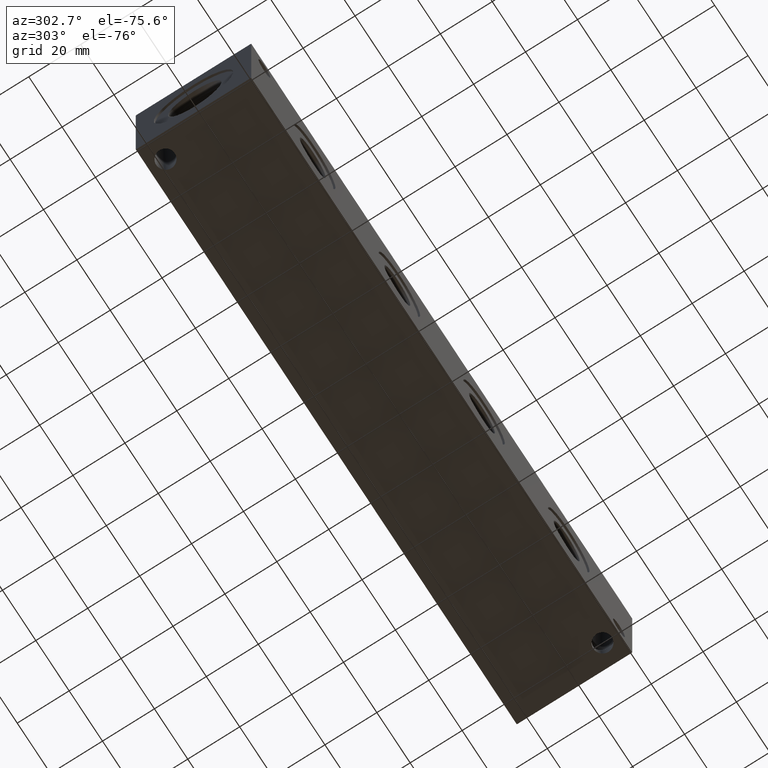
[diagram: clean part render]
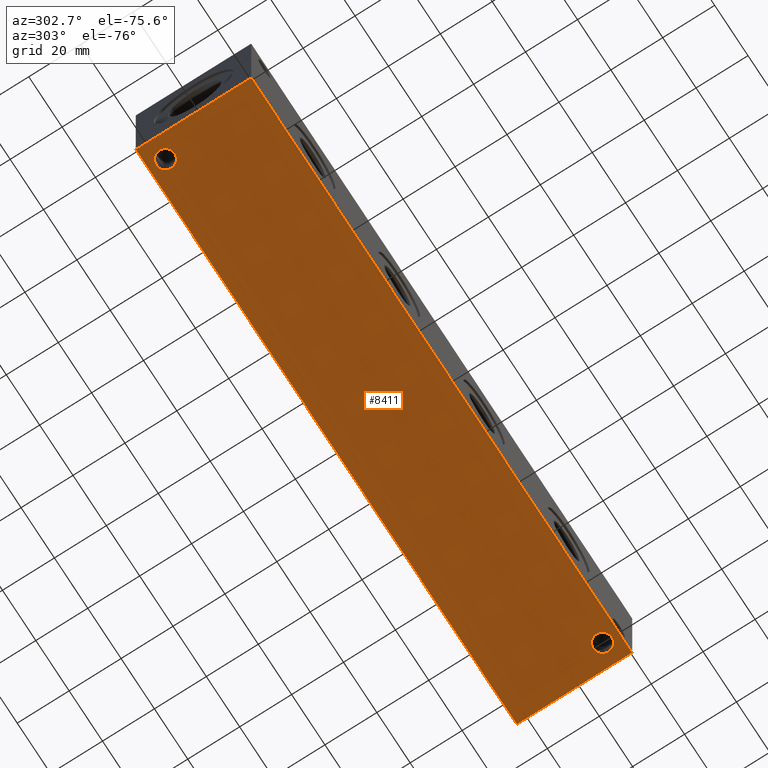
[diagram: same view with one face highlighted and labeled with its STEP entity id]
A machine part, auxiliary view. The second image highlights one B-rep face of the part: STEP entity #8411.
In plain terms, the highlighted planar face has unit normal (0, 0, 1).
Its self-contained STEP definition (entity closure, byte-faithful):
#237=CIRCLE('',#8818,3.5687);
#238=CIRCLE('',#8820,3.5687);
#392=FACE_BOUND('',#1684,.T.);
#393=FACE_BOUND('',#1685,.T.);
#1180=FACE_OUTER_BOUND('',#1683,.T.);
#1683=EDGE_LOOP('',(#7433,#7434,#7435,#7436));
#1684=EDGE_LOOP('',(#7437));
#1685=EDGE_LOOP('',(#7438));
#2399=LINE('',#14712,#3120);
#2402=LINE('',#14717,#3123);
#2404=LINE('',#14721,#3125);
#2406=LINE('',#14724,#3127);
#3120=VECTOR('',#10760,10.);
#3123=VECTOR('',#10765,10.);
#3125=VECTOR('',#10769,10.);
#3127=VECTOR('',#10773,10.);
#3818=VERTEX_POINT('',#14428);
#3819=VERTEX_POINT('',#14432);
#3910=VERTEX_POINT('',#14710);
#3911=VERTEX_POINT('',#14711);
#3912=VERTEX_POINT('',#14716);
#3913=VERTEX_POINT('',#14720);
#4948=EDGE_CURVE('',#3818,#3818,#237,.T.);
#4950=EDGE_CURVE('',#3819,#3819,#238,.T.);
#5081=EDGE_CURVE('',#3910,#3911,#2399,.T.);
#5084=EDGE_CURVE('',#3912,#3910,#2402,.T.);
#5086=EDGE_CURVE('',#3913,#3912,#2404,.T.);
#5088=EDGE_CURVE('',#3911,#3913,#2406,.T.);
#7433=ORIENTED_EDGE('',*,*,#5088,.F.);
#7434=ORIENTED_EDGE('',*,*,#5081,.F.);
#7435=ORIENTED_EDGE('',*,*,#5084,.F.);
#7436=ORIENTED_EDGE('',*,*,#5086,.F.);
#7437=ORIENTED_EDGE('',*,*,#4948,.T.);
#7438=ORIENTED_EDGE('',*,*,#4950,.T.);
#7668=PLANE('',#8968);
#8411=ADVANCED_FACE('',(#1180,#392,#393),#7668,.F.);
#8818=AXIS2_PLACEMENT_3D('',#14430,#10425,#10426);
#8820=AXIS2_PLACEMENT_3D('',#14434,#10430,#10431);
#8968=AXIS2_PLACEMENT_3D('',#14726,#10776,#10777);
#10425=DIRECTION('center_axis',(0.,0.,1.));
#10426=DIRECTION('ref_axis',(1.,0.,0.));
#10430=DIRECTION('center_axis',(0.,0.,1.));
#10431=DIRECTION('ref_axis',(1.,0.,0.));
#10760=DIRECTION('',(0.,-1.,0.));
#10765=DIRECTION('',(-1.,0.,0.));
#10769=DIRECTION('',(0.,1.,0.));
#10773=DIRECTION('',(1.,0.,0.));
#10776=DIRECTION('center_axis',(0.,0.,1.));
#10777=DIRECTION('ref_axis',(1.,0.,0.));
#14428=CARTESIAN_POINT('',(4.3561,38.1,0.));
#14430=CARTESIAN_POINT('Origin',(7.9248,38.1,0.));
#14432=CARTESIAN_POINT('',(217.1065,6.35,0.));
#14434=CARTESIAN_POINT('Origin',(220.6752,6.35,0.));
#14710=CARTESIAN_POINT('',(0.,44.45,0.));
#14711=CARTESIAN_POINT('',(0.,0.,0.));
#14712=CARTESIAN_POINT('',(0.,44.45,0.));
#14716=CARTESIAN_POINT('',(228.6,44.45,0.));
#14717=CARTESIAN_POINT('',(228.6,44.45,0.));
#14720=CARTESIAN_POINT('',(228.6,0.,0.));
#14721=CARTESIAN_POINT('',(228.6,0.,0.));
#14724=CARTESIAN_POINT('',(0.,0.,0.));
#14726=CARTESIAN_POINT('Origin',(114.3,22.225,0.));